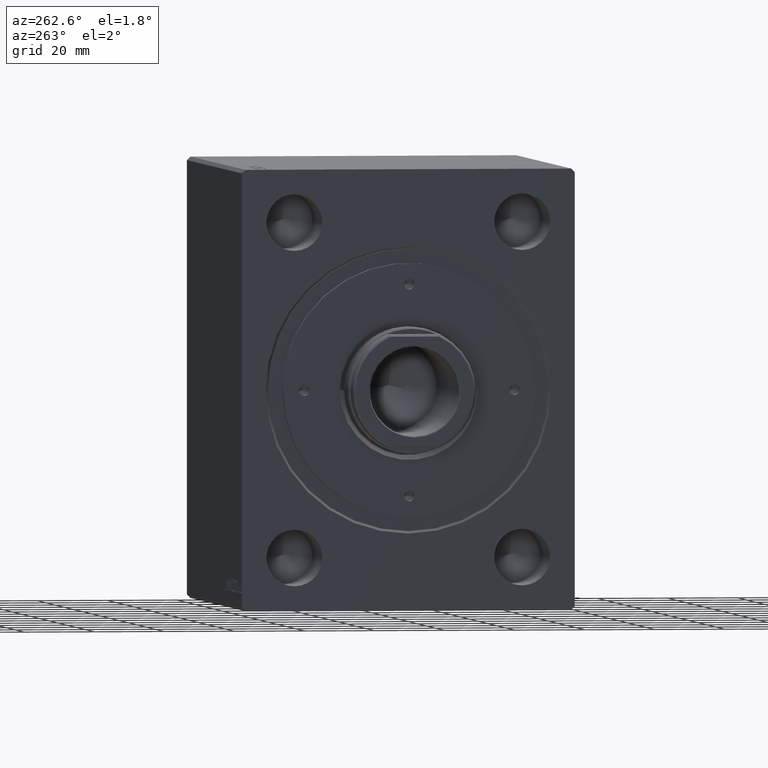
[diagram: clean part render]
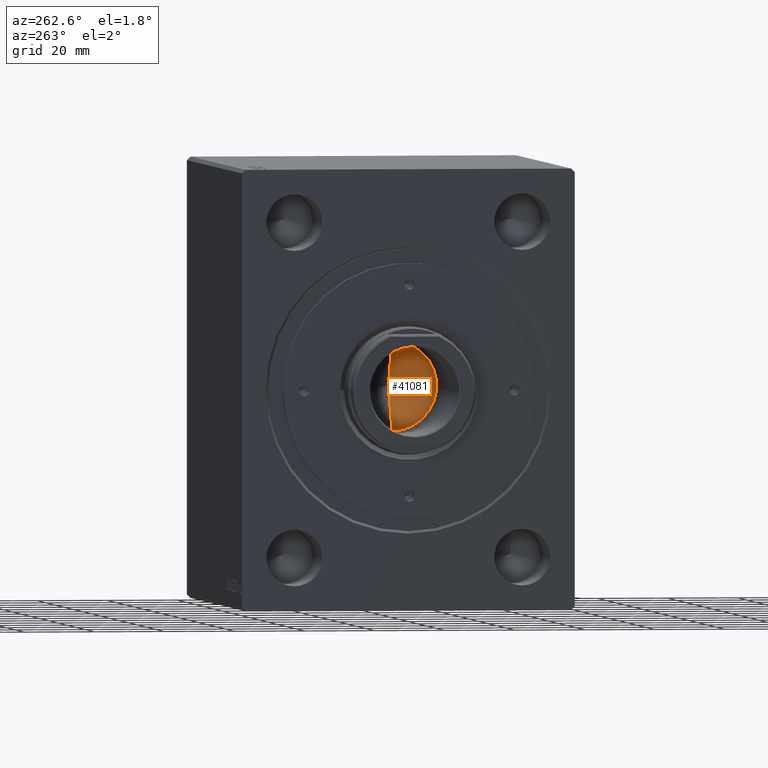
[diagram: same view with one face highlighted and labeled with its STEP entity id]
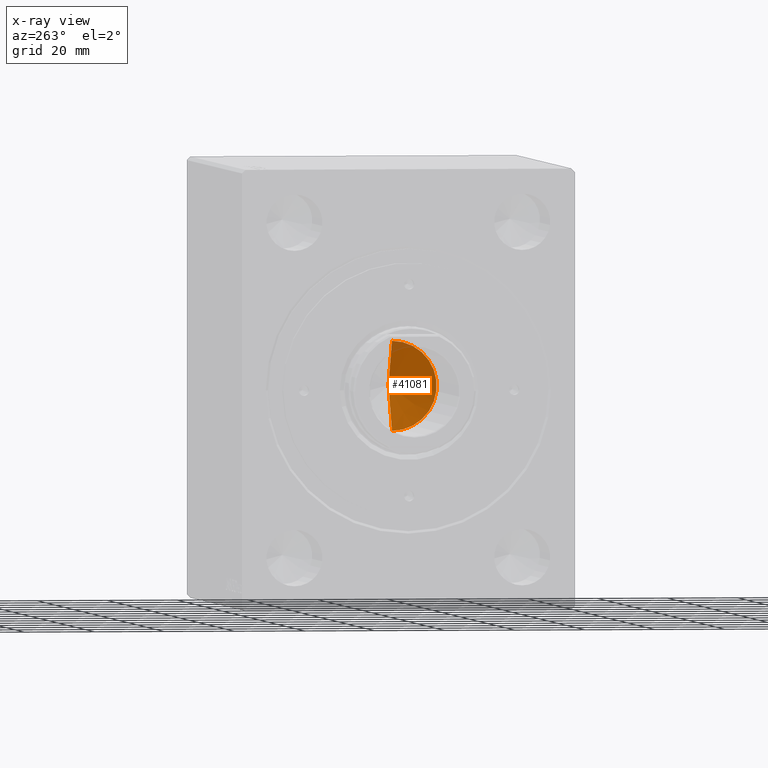
[diagram: x-ray of the same camera — body ghosted, the highlighted face saturated]
A machine part, auxiliary view. The second image highlights one B-rep face of the part: STEP entity #41081.
The next image is the same camera in x-ray: the body ghosted, the highlighted face saturated — about 4% of this face is hidden behind the body in this view.
In plain terms, the highlighted conical surface has half-angle 59 deg.
Its self-contained STEP definition (entity closure, byte-faithful):
#2878 = LINE ( 'NONE', #26868, #40169 ) ;
#5379 = CARTESIAN_POINT ( 'NONE',  ( 12.74999999999999112, 0.000000000000000000, 64.19999999999998863 ) ) ;
#5599 = VECTOR ( 'NONE', #19098, 1000.000000000000000 ) ;
#7261 = ORIENTED_EDGE ( 'NONE', *, *, #26890, .T. ) ;
#7483 = DIRECTION ( 'NONE',  ( -0.8571673007021114454, 1.049727191138617586E-16, 0.5150380749100555988 ) ) ;
#7612 = CARTESIAN_POINT ( 'NONE',  ( 0.000000000000000000, 0.000000000000000000, 64.19999999999998863 ) ) ;
#9339 = CARTESIAN_POINT ( 'NONE',  ( 12.74999999999999112, 0.000000000000000000, 64.19999999999998863 ) ) ;
#9575 = VERTEX_POINT ( 'NONE', #32513 ) ;
#9898 = CARTESIAN_POINT ( 'NONE',  ( 0.000000000000000000, 0.000000000000000000, 64.19999999999998863 ) ) ;
#10015 = AXIS2_PLACEMENT_3D ( 'NONE', #7612, #30503, #31154 ) ;
#10114 = DIRECTION ( 'NONE',  ( 1.000000000000000000, 0.000000000000000000, 0.000000000000000000 ) ) ;
#12432 = LINE ( 'NONE', #9339, #5599 ) ;
#13478 = VERTEX_POINT ( 'NONE', #32937 ) ;
#13697 = EDGE_CURVE ( 'NONE', #9575, #21745, #12432, .T. ) ;
#17336 = AXIS2_PLACEMENT_3D ( 'NONE', #9898, #30991, #10114 ) ;
#18747 = EDGE_CURVE ( 'NONE', #13478, #21745, #38437, .T. ) ;
#19098 = DIRECTION ( 'NONE',  ( 0.8571673007021114454, 0.000000000000000000, 0.5150380749100555988 ) ) ;
#21745 = VERTEX_POINT ( 'NONE', #5379 ) ;
#26868 = CARTESIAN_POINT ( 'NONE',  ( -12.74999999999999112, 1.561424668912874125E-15, 64.19999999999998863 ) ) ;
#26890 = EDGE_CURVE ( 'NONE', #9575, #13478, #2878, .T. ) ;
#30119 = FACE_OUTER_BOUND ( 'NONE', #42222, .T. ) ;
#30503 = DIRECTION ( 'NONE',  ( -0.000000000000000000, -0.000000000000000000, 1.000000000000000000 ) ) ;
#30991 = DIRECTION ( 'NONE',  ( -0.000000000000000000, -0.000000000000000000, 1.000000000000000000 ) ) ;
#31154 = DIRECTION ( 'NONE',  ( 1.000000000000000000, 0.000000000000000000, 0.000000000000000000 ) ) ;
#32183 = ORIENTED_EDGE ( 'NONE', *, *, #13697, .F. ) ;
#32513 = CARTESIAN_POINT ( 'NONE',  ( -1.307202896762960287E-14, 0.000000000000000000, 56.53902710739858151 ) ) ;
#32937 = CARTESIAN_POINT ( 'NONE',  ( -12.74999999999999112, 1.561424668912874125E-15, 64.19999999999998863 ) ) ;
#34393 = CONICAL_SURFACE ( 'NONE', #17336, 12.74999999999999112, 1.029744258676652757 ) ;
#38437 = CIRCLE ( 'NONE', #10015, 12.74999999999999112 ) ;
#40169 = VECTOR ( 'NONE', #7483, 1000.000000000000000 ) ;
#41081 = ADVANCED_FACE ( 'NONE', ( #30119 ), #34393, .F. ) ;
#42222 = EDGE_LOOP ( 'NONE', ( #32183, #7261, #43848 ) ) ;
#43848 = ORIENTED_EDGE ( 'NONE', *, *, #18747, .T. ) ;